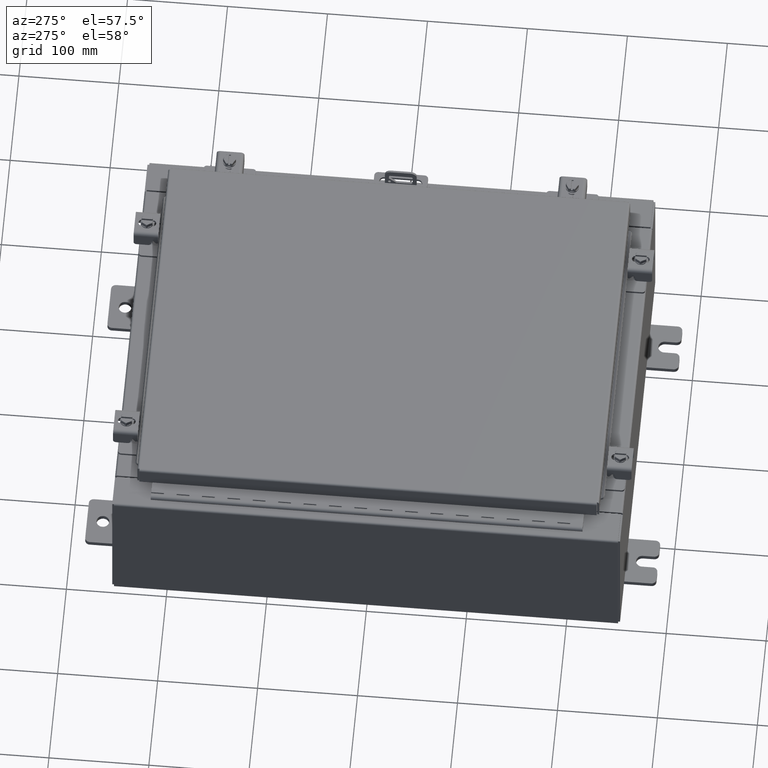
[diagram: clean part render]
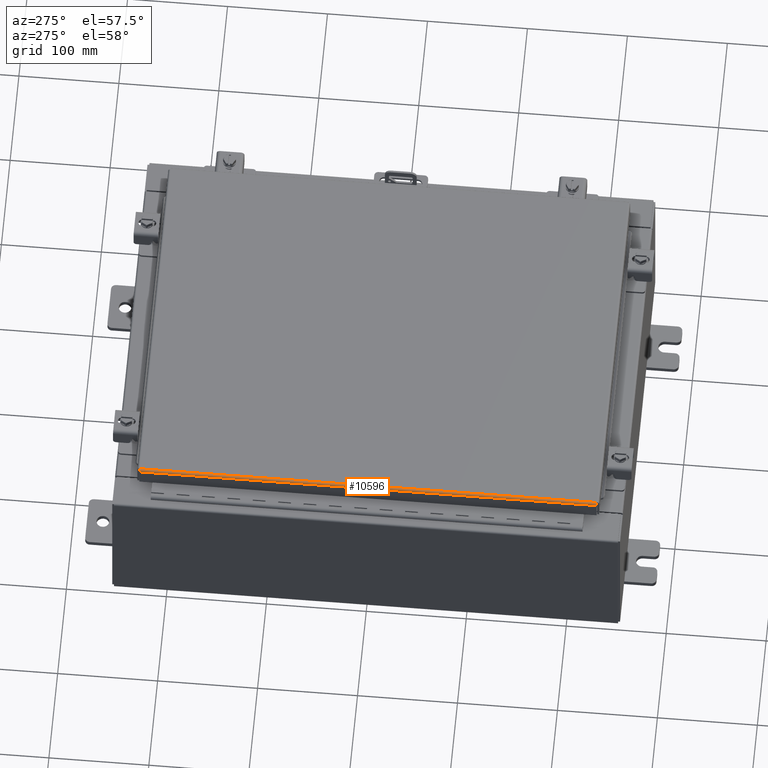
[diagram: same view with one face highlighted and labeled with its STEP entity id]
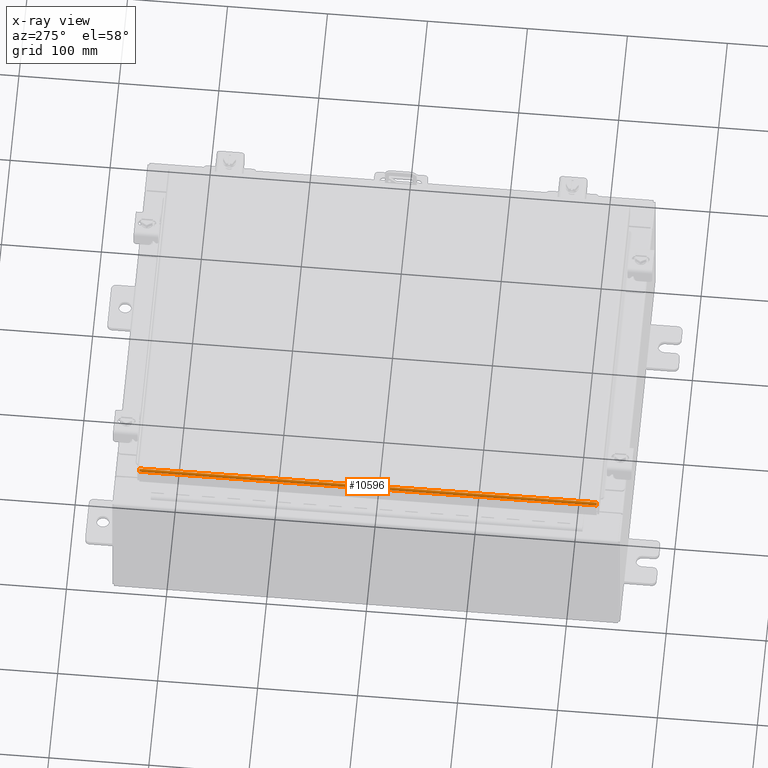
[diagram: x-ray of the same camera — body ghosted, the highlighted face saturated]
A machine part, auxiliary view. The second image highlights one B-rep face of the part: STEP entity #10596.
The next image is the same camera in x-ray: the body ghosted, the highlighted face saturated — about 0% of this face is hidden behind the body in this view.
In plain terms, the highlighted cylindrical surface (edge-blend (fillet) strip) has radius 2.2276 mm, axis along (0, 1, 0).
Its self-contained STEP definition (entity closure, byte-faithful):
#1054 = EDGE_LOOP ( 'NONE', ( #13055, #13270, #19263, #14515 ) ) ;
#1131 = VERTEX_POINT ( 'NONE', #24279 ) ;
#2274 = CARTESIAN_POINT ( 'NONE',  ( -6.990299999999997700, 9.006300000000001300, -2.048885995248197400E-016 ) ) ;
#3511 = VERTEX_POINT ( 'NONE', #11046 ) ;
#4758 = DIRECTION ( 'NONE',  ( 3.645815397208356400E-031, -1.000000000000000000, -1.074717912135910000E-045 ) ) ;
#6031 = CARTESIAN_POINT ( 'NONE',  ( -7.075717403743809100, 9.005348220313560900, -0.06474471054169118900 ) ) ;
#6329 = CARTESIAN_POINT ( 'NONE',  ( -7.001779903154991700, 9.006204822031355300, -2.037547758946368100E-016 ) ) ;
#6673 = CARTESIAN_POINT ( 'NONE',  ( -7.044195747341797500, 9.005824110156780200, -0.01756921792167976500 ) ) ;
#7589 = CYLINDRICAL_SURFACE ( 'NONE', #21935, 0.08770000000000026400 ) ;
#9019 = VERTEX_POINT ( 'NONE', #11346 ) ;
#10043 = CARTESIAN_POINT ( 'NONE',  ( -7.066931066258665500, -9.005538576250844000, -0.04353261542147222900 ) ) ;
#10393 = CARTESIAN_POINT ( 'NONE',  ( -6.990299999999997700, 9.006300000000001300, -2.048885995248197400E-016 ) ) ;
#10596 = ADVANCED_FACE ( 'NONE', ( #18128 ), #7589, .T. ) ;
#11046 = CARTESIAN_POINT ( 'NONE',  ( -7.077999999999998500, -9.005157864376265300, -0.08770000000000007000 ) ) ;
#11346 = CARTESIAN_POINT ( 'NONE',  ( -7.077999999999998500, 9.005157864376270600, -0.08770000000000004200 ) ) ;
#11608 = CARTESIAN_POINT ( 'NONE',  ( -7.066931066258662900, 9.005538576250845800, -0.04353261542147222200 ) ) ;
#11808 = CARTESIAN_POINT ( 'NONE',  ( -6.990299999999997700, 9.006300000000001300, -0.08770000000000030500 ) ) ;
#13055 = ORIENTED_EDGE ( 'NONE', *, *, #26374, .F. ) ;
#13166 = DIRECTION ( 'NONE',  ( 0.0000000000000000000, -1.000000000000000000, 0.0000000000000000000 ) ) ;
#13270 = ORIENTED_EDGE ( 'NONE', *, *, #15849, .F. ) ;
#14161 = CARTESIAN_POINT ( 'NONE',  ( -7.077999999999998500, -9.093999999999999400, -0.08770000000000004200 ) ) ;
#14515 = ORIENTED_EDGE ( 'NONE', *, *, #21842, .F. ) ;
#14686 = CARTESIAN_POINT ( 'NONE',  ( -7.060430782078317000, -9.005633754219486400, -0.03380425265820009900 ) ) ;
#14691 = CARTESIAN_POINT ( 'NONE',  ( -7.077999999999998500, -9.005253042344911300, -0.07622009684500735700 ) ) ;
#15575 = VECTOR ( 'NONE', #13166, 39.37007874015748100 ) ;
#15849 = EDGE_CURVE ( 'NONE', #9019, #23521, #21083, .T. ) ;
#16060 = CARTESIAN_POINT ( 'NONE',  ( -7.034467384578525700, -9.005919288125420900, -0.01106893374133176100 ) ) ;
#17612 = B_SPLINE_CURVE_WITH_KNOTS ( 'NONE', 3,
 ( #26151, #29829, #27109, #16060, #22302, #14686, #10043, #19034, #14691, #18322 ),
 .UNSPECIFIED., .F., .F.,
 ( 4, 2, 2, 2, 4 ),
 ( 0.0000000000000000000, 0.2500000000000000000, 0.5000000000000000000, 0.7500000000000000000, 1.000000000000000000 ),
 .UNSPECIFIED. ) ;
#17788 = CARTESIAN_POINT ( 'NONE',  ( -7.077999999999998500, 9.005157864376270600, -0.08770000000000004200 ) ) ;
#18128 = FACE_OUTER_BOUND ( 'NONE', #1054, .T. ) ;
#18322 = CARTESIAN_POINT ( 'NONE',  ( -7.077999999999998500, -9.005157864376265300, -0.08770000000000007000 ) ) ;
#19034 = CARTESIAN_POINT ( 'NONE',  ( -7.075717403743809100, -9.005348220313557300, -0.06474471054169118900 ) ) ;
#19196 = VECTOR ( 'NONE', #4758, 39.37007874015748100 ) ;
#19263 = ORIENTED_EDGE ( 'NONE', *, *, #20625, .T. ) ;
#20625 = EDGE_CURVE ( 'NONE', #9019, #3511, #24888, .T. ) ;
#20836 = CARTESIAN_POINT ( 'NONE',  ( -7.077999999999998500, 9.005253042344914900, -0.07622009684500732900 ) ) ;
#21083 = B_SPLINE_CURVE_WITH_KNOTS ( 'NONE', 3,
 ( #17788, #20836, #6031, #11608, #26709, #6673, #22689, #21221, #6329, #10393 ),
 .UNSPECIFIED., .F., .F.,
 ( 4, 2, 2, 2, 4 ),
 ( 0.0000000000000000000, 0.2500000000000000000, 0.5000000000000000000, 0.7500000000000000000, 1.000000000000000000 ),
 .UNSPECIFIED. ) ;
#21221 = CARTESIAN_POINT ( 'NONE',  ( -7.013255289458305300, 9.006109644062711100, -0.002282596256188923800 ) ) ;
#21842 = EDGE_CURVE ( 'NONE', #1131, #3511, #17612, .T. ) ;
#21935 = AXIS2_PLACEMENT_3D ( 'NONE', #11808, #27355, #23836 ) ;
#22302 = CARTESIAN_POINT ( 'NONE',  ( -7.044195747341798400, -9.005824110156778400, -0.01756921792167976500 ) ) ;
#22689 = CARTESIAN_POINT ( 'NONE',  ( -7.034467384578526600, 9.005919288125424400, -0.01106893374133176100 ) ) ;
#23521 = VERTEX_POINT ( 'NONE', #24009 ) ;
#23836 = DIRECTION ( 'NONE',  ( -1.000000000000000000, 0.0000000000000000000, 3.114992011019675100E-015 ) ) ;
#24009 = CARTESIAN_POINT ( 'NONE',  ( -6.990299999999997700, 9.006300000000001300, -2.048885995248197400E-016 ) ) ;
#24279 = CARTESIAN_POINT ( 'NONE',  ( -6.990299999999997700, -9.006299999999997800, -2.048885995248197400E-016 ) ) ;
#24888 = LINE ( 'NONE', #14161, #19196 ) ;
#26151 = CARTESIAN_POINT ( 'NONE',  ( -6.990299999999997700, -9.006299999999997800, -2.048885995248197400E-016 ) ) ;
#26374 = EDGE_CURVE ( 'NONE', #23521, #1131, #27662, .T. ) ;
#26709 = CARTESIAN_POINT ( 'NONE',  ( -7.060430782078318800, 9.005633754219491700, -0.03380425265820009200 ) ) ;
#27109 = CARTESIAN_POINT ( 'NONE',  ( -7.013255289458308900, -9.006109644062711100, -0.002282596256188924700 ) ) ;
#27355 = DIRECTION ( 'NONE',  ( -0.0000000000000000000, 1.000000000000000000, -0.0000000000000000000 ) ) ;
#27662 = LINE ( 'NONE', #2274, #15575 ) ;
#29829 = CARTESIAN_POINT ( 'NONE',  ( -7.001779903154991700, -9.006204822031353500, -2.043883832173860400E-016 ) ) ;